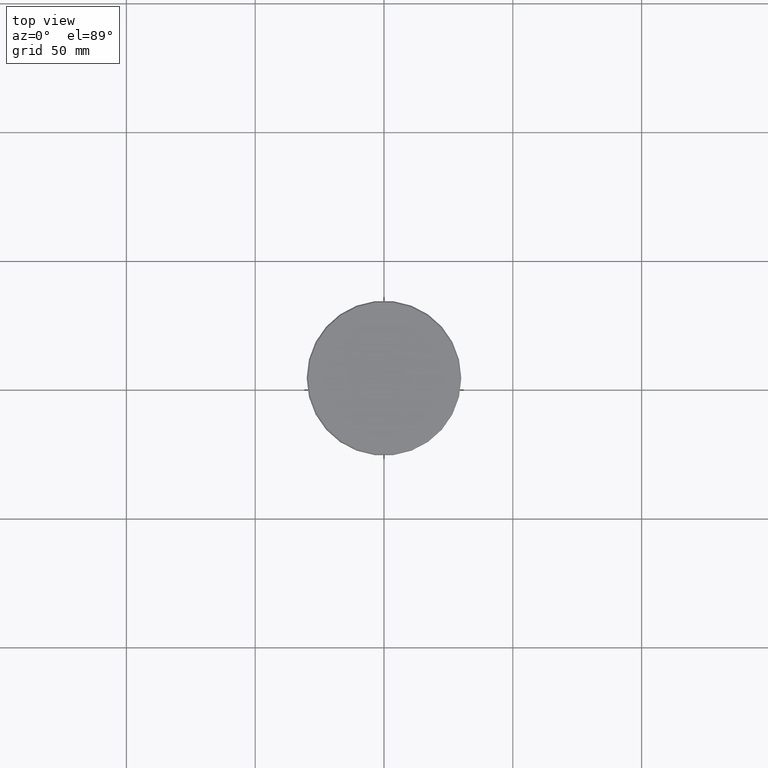
[diagram: clean part render]
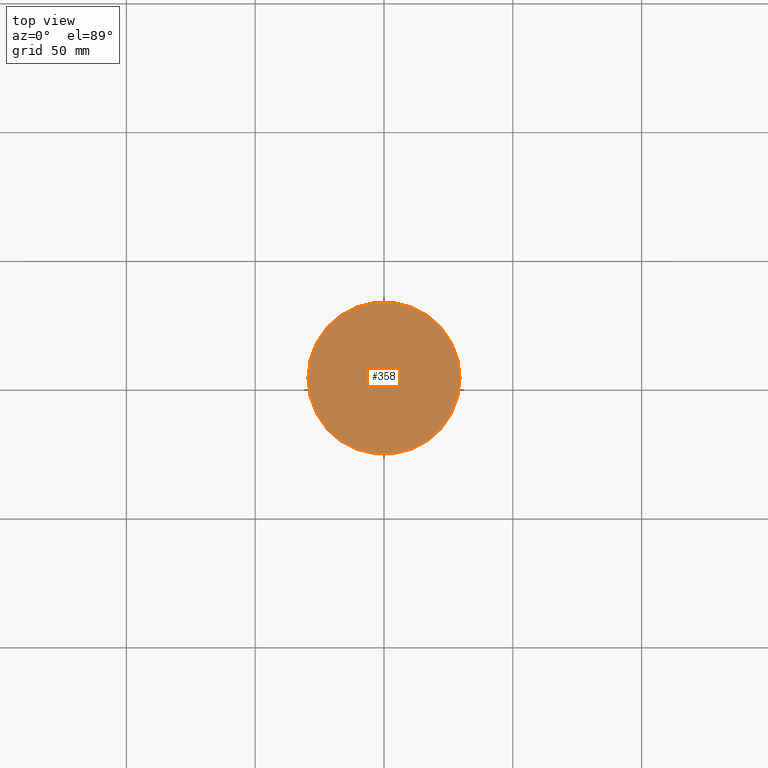
[diagram: same view with one face highlighted and labeled with its STEP entity id]
A machine part, top view. The second image highlights one B-rep face of the part: STEP entity #358.
In plain terms, the highlighted planar face has unit normal (0, -0, 1).
Its self-contained STEP definition (entity closure, byte-faithful):
#39 = ORIENTED_EDGE ( 'NONE', *, *, #459, .T. ) ;
#153 = EDGE_LOOP ( 'NONE', ( #39, #979 ) ) ;
#158 = CARTESIAN_POINT ( 'NONE',  ( 0.000000000000000000, 0.000000000000000000, 0.000000000000000000 ) ) ;
#175 = CIRCLE ( 'NONE', #449, 29.50000000000002487 ) ;
#326 = AXIS2_PLACEMENT_3D ( 'NONE', #934, #1043, #855 ) ;
#358 = ADVANCED_FACE ( 'NONE', ( #772 ), #597, .T. ) ;
#449 = AXIS2_PLACEMENT_3D ( 'NONE', #1070, #695, #1053 ) ;
#459 = EDGE_CURVE ( 'NONE', #846, #1170, #941, .T. ) ;
#597 = PLANE ( 'NONE',  #326 ) ;
#695 = DIRECTION ( 'NONE',  ( -0.000000000000000000, -0.000000000000000000, 1.000000000000000000 ) ) ;
#772 = FACE_OUTER_BOUND ( 'NONE', #153, .T. ) ;
#797 = CARTESIAN_POINT ( 'NONE',  ( -29.50000000000002487, 0.000000000000000000, 0.000000000000000000 ) ) ;
#821 = DIRECTION ( 'NONE',  ( -0.000000000000000000, -0.000000000000000000, 1.000000000000000000 ) ) ;
#846 = VERTEX_POINT ( 'NONE', #797 ) ;
#855 = DIRECTION ( 'NONE',  ( 1.000000000000000000, 0.000000000000000000, 0.000000000000000000 ) ) ;
#893 = DIRECTION ( 'NONE',  ( 1.000000000000000000, 0.000000000000000000, 0.000000000000000000 ) ) ;
#934 = CARTESIAN_POINT ( 'NONE',  ( 0.000000000000000000, 0.000000000000000000, 0.000000000000000000 ) ) ;
#941 = CIRCLE ( 'NONE', #1136, 29.50000000000002487 ) ;
#979 = ORIENTED_EDGE ( 'NONE', *, *, #1086, .T. ) ;
#991 = CARTESIAN_POINT ( 'NONE',  ( 29.50000000000002487, 3.643324227463376968E-15, 0.000000000000000000 ) ) ;
#1043 = DIRECTION ( 'NONE',  ( 0.000000000000000000, -0.000000000000000000, 1.000000000000000000 ) ) ;
#1053 = DIRECTION ( 'NONE',  ( 1.000000000000000000, 0.000000000000000000, 0.000000000000000000 ) ) ;
#1070 = CARTESIAN_POINT ( 'NONE',  ( 0.000000000000000000, 0.000000000000000000, 0.000000000000000000 ) ) ;
#1086 = EDGE_CURVE ( 'NONE', #1170, #846, #175, .T. ) ;
#1136 = AXIS2_PLACEMENT_3D ( 'NONE', #158, #821, #893 ) ;
#1170 = VERTEX_POINT ( 'NONE', #991 ) ;